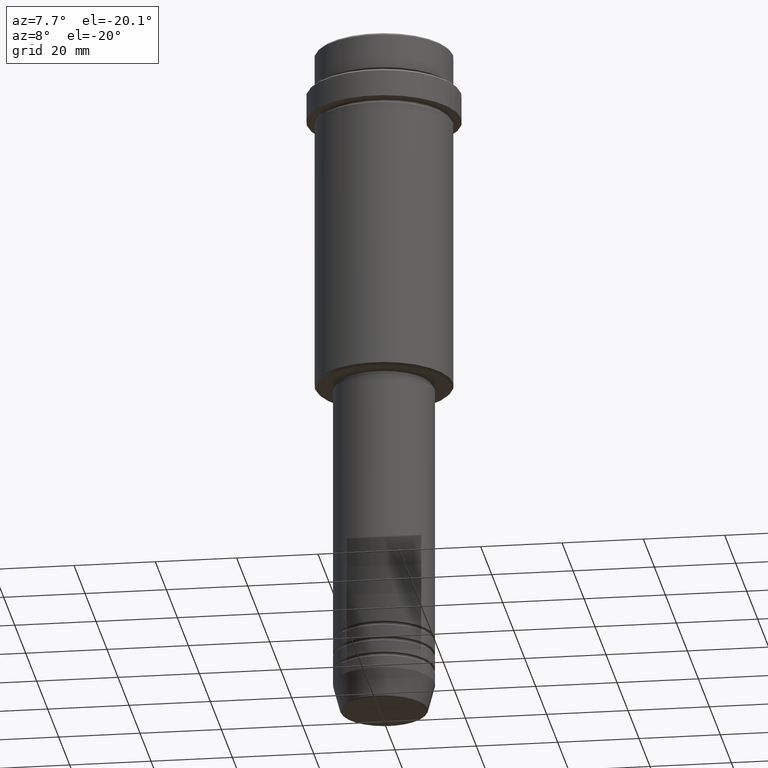
[diagram: clean part render]
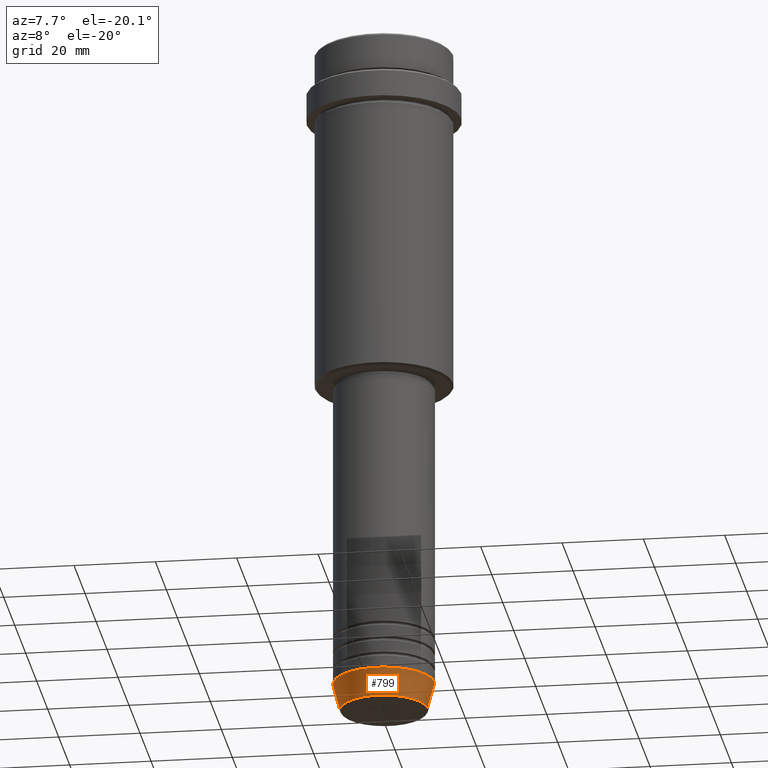
[diagram: same view with one face highlighted and labeled with its STEP entity id]
A machine part, auxiliary view. The second image highlights one B-rep face of the part: STEP entity #799.
In plain terms, the highlighted conical surface has half-angle 15 deg.
Its self-contained STEP definition (entity closure, byte-faithful):
#57 = DIRECTION ( 'NONE',  ( 1.000000000000000000, 0.000000000000000000, 0.000000000000000000 ) ) ;
#65 = CONICAL_SURFACE ( 'NONE', #1070, 12.50000000000000000, 0.2617993877991500740 ) ;
#158 = FACE_OUTER_BOUND ( 'NONE', #1111, .T. ) ;
#225 = VECTOR ( 'NONE', #826, 1000.000000000000000 ) ;
#261 = DIRECTION ( 'NONE',  ( 0.2588190451025213501, 0.000000000000000000, 0.9659258262890680902 ) ) ;
#302 = DIRECTION ( 'NONE',  ( 1.000000000000000000, 0.000000000000000000, 0.000000000000000000 ) ) ;
#332 = CARTESIAN_POINT ( 'NONE',  ( 0.000000000000000000, 0.000000000000000000, -169.6294095225512990 ) ) ;
#344 = VERTEX_POINT ( 'NONE', #459 ) ;
#366 = ORIENTED_EDGE ( 'NONE', *, *, #1259, .F. ) ;
#382 = CARTESIAN_POINT ( 'NONE',  ( 0.000000000000000000, 0.000000000000000000, -163.0000000000000000 ) ) ;
#431 = CIRCLE ( 'NONE', #817, 10.72365507213718416 ) ;
#438 = CARTESIAN_POINT ( 'NONE',  ( 0.000000000000000000, 0.000000000000000000, -163.0000000000000000 ) ) ;
#458 = VERTEX_POINT ( 'NONE', #1282 ) ;
#459 = CARTESIAN_POINT ( 'NONE',  ( -10.72365507213718416, 1.422038742429750121E-15, -169.6294095225512990 ) ) ;
#475 = CIRCLE ( 'NONE', #1214, 12.50000000000000000 ) ;
#508 = ORIENTED_EDGE ( 'NONE', *, *, #1058, .F. ) ;
#543 = EDGE_CURVE ( 'NONE', #344, #458, #431, .T. ) ;
#580 = DIRECTION ( 'NONE',  ( -0.000000000000000000, -0.000000000000000000, 1.000000000000000000 ) ) ;
#599 = CARTESIAN_POINT ( 'NONE',  ( 12.50000000000000000, 0.000000000000000000, -163.0000000000000000 ) ) ;
#601 = CARTESIAN_POINT ( 'NONE',  ( -12.50000000000000000, 1.530808498934191521E-15, -163.0000000000000000 ) ) ;
#623 = DIRECTION ( 'NONE',  ( -0.000000000000000000, -0.000000000000000000, 1.000000000000000000 ) ) ;
#667 = ORIENTED_EDGE ( 'NONE', *, *, #770, .T. ) ;
#737 = CARTESIAN_POINT ( 'NONE',  ( -12.50000000000000000, 1.530808498934191521E-15, -163.0000000000000000 ) ) ;
#749 = VERTEX_POINT ( 'NONE', #912 ) ;
#770 = EDGE_CURVE ( 'NONE', #458, #749, #796, .T. ) ;
#796 = LINE ( 'NONE', #599, #940 ) ;
#799 = ADVANCED_FACE ( 'NONE', ( #158 ), #65, .T. ) ;
#817 = AXIS2_PLACEMENT_3D ( 'NONE', #332, #1226, #302 ) ;
#826 = DIRECTION ( 'NONE',  ( -0.2588190451025213501, 3.169619151431772337E-17, 0.9659258262890680902 ) ) ;
#912 = CARTESIAN_POINT ( 'NONE',  ( 12.50000000000000000, 0.000000000000000000, -163.0000000000000000 ) ) ;
#940 = VECTOR ( 'NONE', #261, 1000.000000000000000 ) ;
#973 = VERTEX_POINT ( 'NONE', #737 ) ;
#1007 = ORIENTED_EDGE ( 'NONE', *, *, #543, .T. ) ;
#1054 = LINE ( 'NONE', #601, #225 ) ;
#1058 = EDGE_CURVE ( 'NONE', #973, #749, #475, .T. ) ;
#1069 = DIRECTION ( 'NONE',  ( 1.000000000000000000, 0.000000000000000000, 0.000000000000000000 ) ) ;
#1070 = AXIS2_PLACEMENT_3D ( 'NONE', #382, #580, #57 ) ;
#1111 = EDGE_LOOP ( 'NONE', ( #366, #1007, #667, #508 ) ) ;
#1214 = AXIS2_PLACEMENT_3D ( 'NONE', #438, #623, #1069 ) ;
#1226 = DIRECTION ( 'NONE',  ( -0.000000000000000000, -0.000000000000000000, 1.000000000000000000 ) ) ;
#1259 = EDGE_CURVE ( 'NONE', #344, #973, #1054, .T. ) ;
#1282 = CARTESIAN_POINT ( 'NONE',  ( 10.72365507213718416, 0.000000000000000000, -169.6294095225512990 ) ) ;